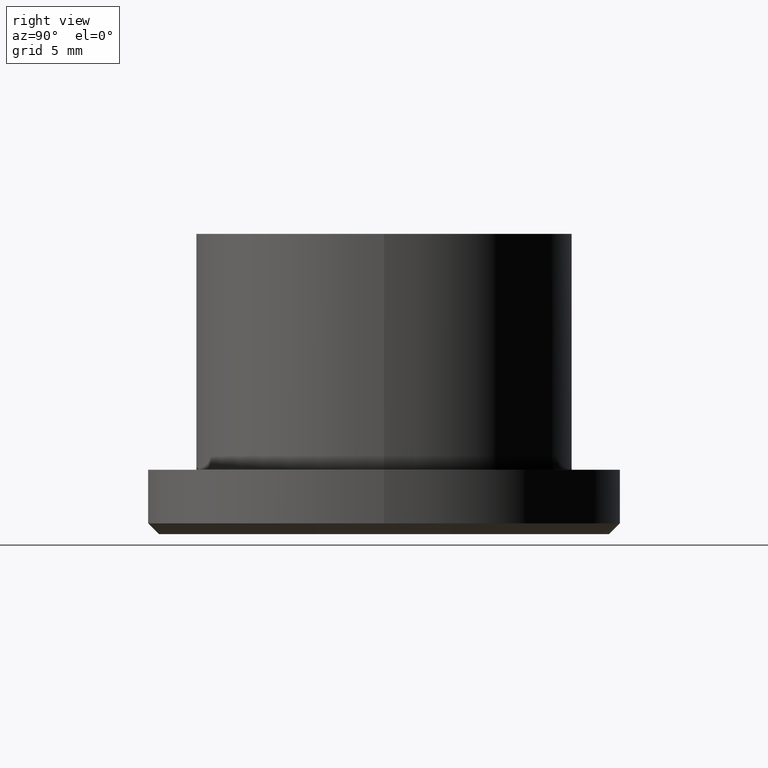
[diagram: clean part render]
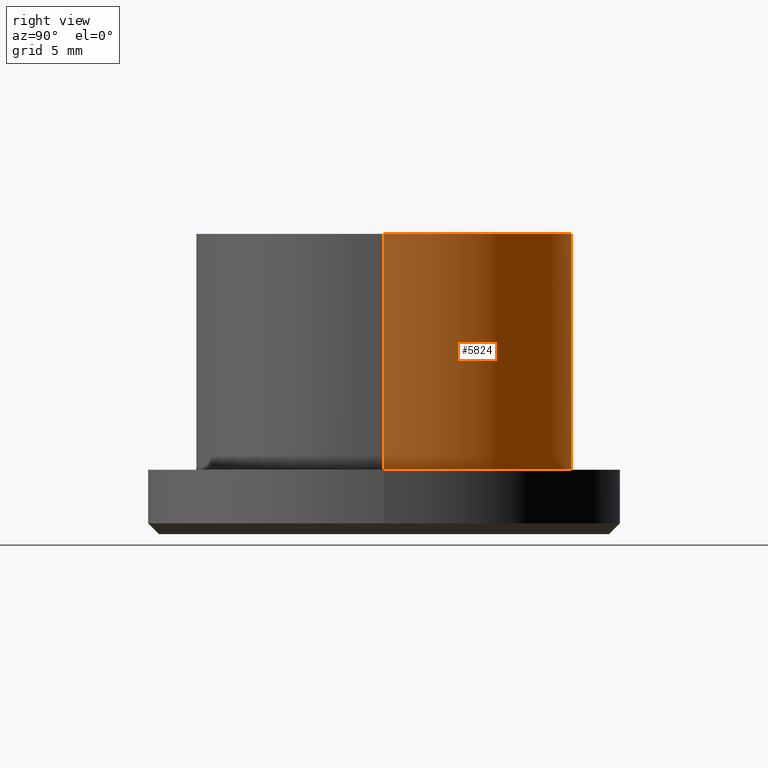
[diagram: same view with one face highlighted and labeled with its STEP entity id]
A machine part, right view. The second image highlights one B-rep face of the part: STEP entity #5824.
In plain terms, the highlighted cylindrical surface (partial cylindrical patch) has radius 8.75 mm, axis along (-0, -0, 1).
Its self-contained STEP definition (entity closure, byte-faithful):
#96 = CARTESIAN_POINT ( 'NONE',  ( -8.750000000000000000, 1.071565949253934124E-15, 7.000000000000000000 ) ) ;
#700 = EDGE_CURVE ( 'NONE', #6100, #11492, #13141, .T. ) ;
#1156 = EDGE_CURVE ( 'NONE', #2914, #11492, #9911, .T. ) ;
#1481 = AXIS2_PLACEMENT_3D ( 'NONE', #7250, #2274, #5341 ) ;
#2259 = CARTESIAN_POINT ( 'NONE',  ( -8.750000000000000000, 1.071565949253934124E-15, -4.000000000000000888 ) ) ;
#2274 = DIRECTION ( 'NONE',  ( -0.000000000000000000, -0.000000000000000000, 1.000000000000000000 ) ) ;
#2463 = CYLINDRICAL_SURFACE ( 'NONE', #1481, 8.750000000000000000 ) ;
#2914 = VERTEX_POINT ( 'NONE', #9996 ) ;
#3796 = VERTEX_POINT ( 'NONE', #6628 ) ;
#3996 = ORIENTED_EDGE ( 'NONE', *, *, #700, .T. ) ;
#4403 = DIRECTION ( 'NONE',  ( -0.000000000000000000, -0.000000000000000000, 1.000000000000000000 ) ) ;
#4516 = AXIS2_PLACEMENT_3D ( 'NONE', #7283, #11301, #11381 ) ;
#4953 = VECTOR ( 'NONE', #10262, 1000.000000000000000 ) ;
#5341 = DIRECTION ( 'NONE',  ( 1.000000000000000000, 0.000000000000000000, 0.000000000000000000 ) ) ;
#5824 = ADVANCED_FACE ( 'NONE', ( #13232 ), #2463, .T. ) ;
#5882 = CIRCLE ( 'NONE', #10283, 8.750000000000000000 ) ;
#6100 = VERTEX_POINT ( 'NONE', #2259 ) ;
#6415 = CARTESIAN_POINT ( 'NONE',  ( 0.000000000000000000, 0.000000000000000000, -4.000000000000000888 ) ) ;
#6628 = CARTESIAN_POINT ( 'NONE',  ( 8.750000000000000000, 0.000000000000000000, -4.000000000000000888 ) ) ;
#7198 = CARTESIAN_POINT ( 'NONE',  ( 8.750000000000000000, 0.000000000000000000, 7.000000000000000000 ) ) ;
#7250 = CARTESIAN_POINT ( 'NONE',  ( 0.000000000000000000, 0.000000000000000000, 7.000000000000000000 ) ) ;
#7283 = CARTESIAN_POINT ( 'NONE',  ( 0.000000000000000000, 0.000000000000000000, 7.000000000000000000 ) ) ;
#7640 = EDGE_LOOP ( 'NONE', ( #12308, #3996, #8359, #9491 ) ) ;
#8359 = ORIENTED_EDGE ( 'NONE', *, *, #1156, .F. ) ;
#8478 = CARTESIAN_POINT ( 'NONE',  ( -8.750000000000000000, 1.071565949253934124E-15, 7.000000000000000000 ) ) ;
#8509 = DIRECTION ( 'NONE',  ( 1.000000000000000000, 0.000000000000000000, 0.000000000000000000 ) ) ;
#9388 = DIRECTION ( 'NONE',  ( -0.000000000000000000, -0.000000000000000000, 1.000000000000000000 ) ) ;
#9491 = ORIENTED_EDGE ( 'NONE', *, *, #12439, .F. ) ;
#9911 = CIRCLE ( 'NONE', #4516, 8.750000000000000000 ) ;
#9996 = CARTESIAN_POINT ( 'NONE',  ( 8.750000000000000000, 0.000000000000000000, 7.000000000000000000 ) ) ;
#10052 = VECTOR ( 'NONE', #9388, 1000.000000000000000 ) ;
#10262 = DIRECTION ( 'NONE',  ( -0.000000000000000000, -0.000000000000000000, 1.000000000000000000 ) ) ;
#10283 = AXIS2_PLACEMENT_3D ( 'NONE', #6415, #4403, #8509 ) ;
#11301 = DIRECTION ( 'NONE',  ( -0.000000000000000000, -0.000000000000000000, 1.000000000000000000 ) ) ;
#11381 = DIRECTION ( 'NONE',  ( 1.000000000000000000, 0.000000000000000000, 0.000000000000000000 ) ) ;
#11492 = VERTEX_POINT ( 'NONE', #8478 ) ;
#11682 = LINE ( 'NONE', #7198, #10052 ) ;
#12308 = ORIENTED_EDGE ( 'NONE', *, *, #13094, .T. ) ;
#12439 = EDGE_CURVE ( 'NONE', #3796, #2914, #11682, .T. ) ;
#13094 = EDGE_CURVE ( 'NONE', #3796, #6100, #5882, .T. ) ;
#13141 = LINE ( 'NONE', #96, #4953 ) ;
#13232 = FACE_OUTER_BOUND ( 'NONE', #7640, .T. ) ;